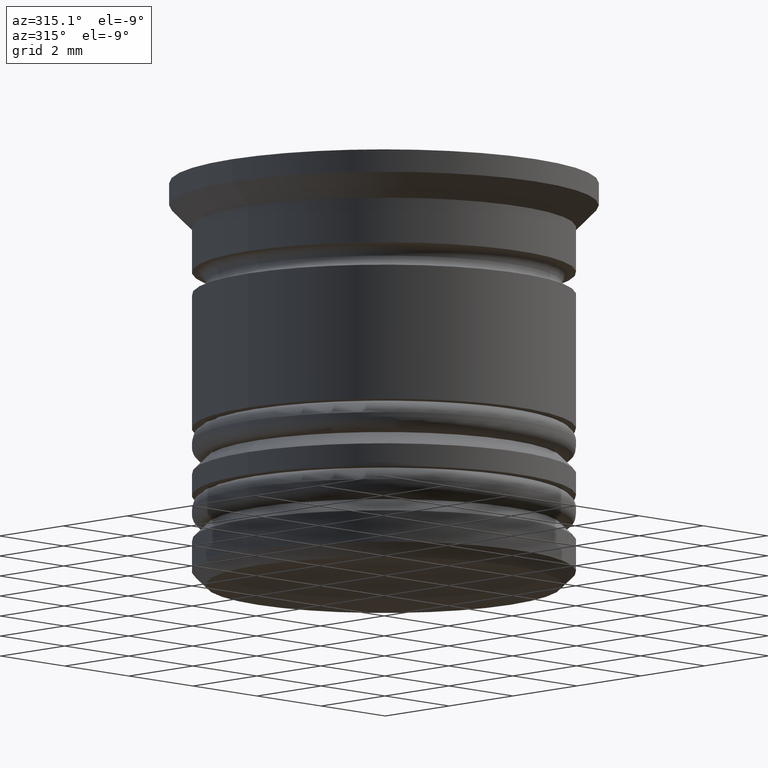
[diagram: clean part render]
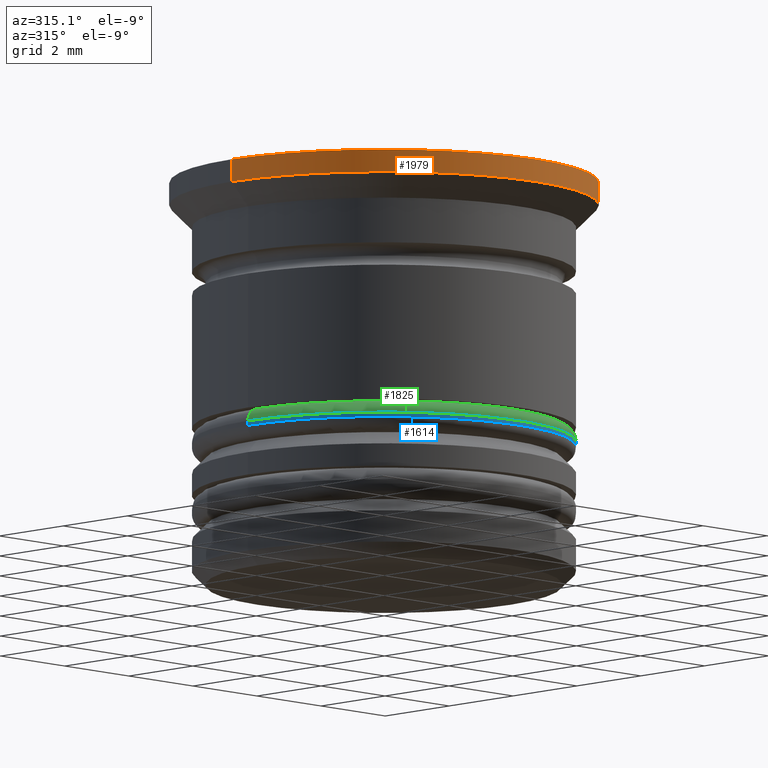
[diagram: same view with three faces highlighted in distinct colors, each labeled with its STEP entity id]
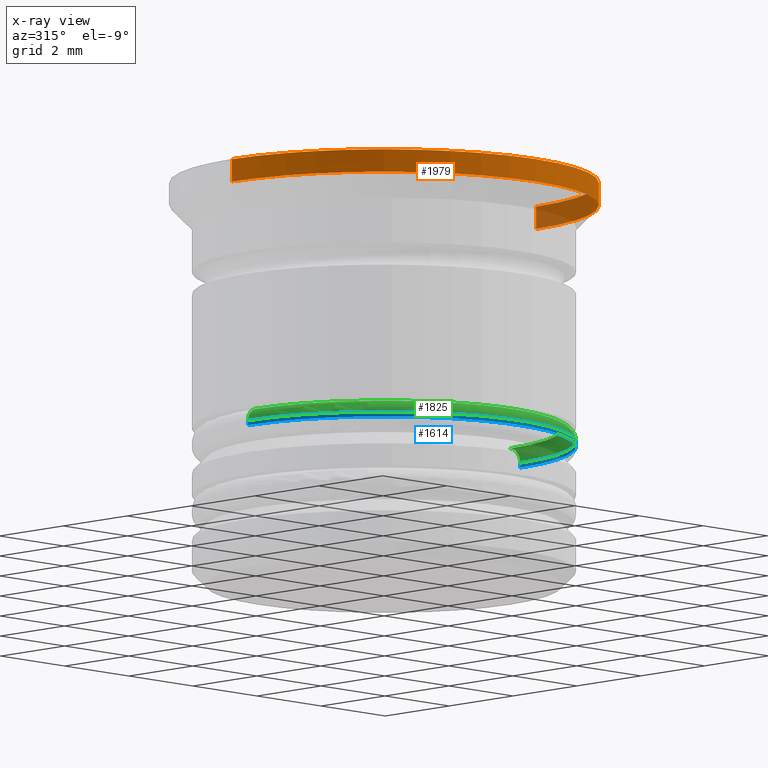
[diagram: x-ray of the same camera — body ghosted, the three highlighted faces saturated]
A machine part, auxiliary view with three faces highlighted in distinct colors.
The next image is the same camera in x-ray (body ghosted, the three faces saturated) — at least one of them is partly hidden behind the body in this view.
Their STEP definitions:

[orange] entity #1979 — the highlighted cylindrical surface (partial cylindrical patch) has radius 4.75 mm, axis along (-0, -0, 1).
#119 = ORIENTED_EDGE ( 'NONE', *, *, #1649, .T. ) ;
#137 = CARTESIAN_POINT ( 'NONE',  ( 0.000000000000000000, 0.000000000000000000, 0.000000000000000000 ) ) ;
#170 = VERTEX_POINT ( 'NONE', #566 ) ;
#172 = VERTEX_POINT ( 'NONE', #1450 ) ;
#214 = DIRECTION ( 'NONE',  ( -0.000000000000000000, -0.000000000000000000, 1.000000000000000000 ) ) ;
#255 = CIRCLE ( 'NONE', #417, 4.750000000000000000 ) ;
#279 = CARTESIAN_POINT ( 'NONE',  ( 0.000000000000000000, 0.000000000000000000, -0.4999999999999985012 ) ) ;
#417 = AXIS2_PLACEMENT_3D ( 'NONE', #279, #426, #1362 ) ;
#426 = DIRECTION ( 'NONE',  ( -0.000000000000000000, -0.000000000000000000, 1.000000000000000000 ) ) ;
#481 = DIRECTION ( 'NONE',  ( 1.000000000000000000, 0.000000000000000000, 0.000000000000000000 ) ) ;
#566 = CARTESIAN_POINT ( 'NONE',  ( 4.750000000000000000, 0.000000000000000000, 0.000000000000000000 ) ) ;
#585 = ORIENTED_EDGE ( 'NONE', *, *, #1754, .F. ) ;
#647 = CYLINDRICAL_SURFACE ( 'NONE', #2000, 4.750000000000000000 ) ;
#661 = FACE_OUTER_BOUND ( 'NONE', #715, .T. ) ;
#706 = ORIENTED_EDGE ( 'NONE', *, *, #955, .T. ) ;
#715 = EDGE_LOOP ( 'NONE', ( #1492, #119, #706, #585 ) ) ;
#785 = DIRECTION ( 'NONE',  ( 1.000000000000000000, 0.000000000000000000, 0.000000000000000000 ) ) ;
#797 = CARTESIAN_POINT ( 'NONE',  ( 4.750000000000000000, 0.000000000000000000, -0.4999999999999985012 ) ) ;
#837 = LINE ( 'NONE', #1021, #1930 ) ;
#937 = CIRCLE ( 'NONE', #1341, 4.750000000000000000 ) ;
#955 = EDGE_CURVE ( 'NONE', #2017, #170, #837, .T. ) ;
#1021 = CARTESIAN_POINT ( 'NONE',  ( 4.750000000000000000, 0.000000000000000000, 0.000000000000000000 ) ) ;
#1114 = CARTESIAN_POINT ( 'NONE',  ( -4.750000000000000000, 5.817072295949927426E-16, 0.000000000000000000 ) ) ;
#1140 = CARTESIAN_POINT ( 'NONE',  ( 0.000000000000000000, 0.000000000000000000, 0.000000000000000000 ) ) ;
#1230 = CARTESIAN_POINT ( 'NONE',  ( -4.750000000000000000, 5.817072295949927426E-16, 0.000000000000000000 ) ) ;
#1246 = DIRECTION ( 'NONE',  ( -0.000000000000000000, -0.000000000000000000, 1.000000000000000000 ) ) ;
#1341 = AXIS2_PLACEMENT_3D ( 'NONE', #137, #1246, #785 ) ;
#1362 = DIRECTION ( 'NONE',  ( -1.000000000000000000, 0.000000000000000000, 0.000000000000000000 ) ) ;
#1412 = DIRECTION ( 'NONE',  ( -0.000000000000000000, -0.000000000000000000, 1.000000000000000000 ) ) ;
#1437 = VECTOR ( 'NONE', #1412, 1000.000000000000000 ) ;
#1441 = DIRECTION ( 'NONE',  ( -0.000000000000000000, -0.000000000000000000, 1.000000000000000000 ) ) ;
#1450 = CARTESIAN_POINT ( 'NONE',  ( -4.750000000000000000, 5.817072295949927426E-16, -0.4999999999999985012 ) ) ;
#1492 = ORIENTED_EDGE ( 'NONE', *, *, #1891, .F. ) ;
#1542 = VERTEX_POINT ( 'NONE', #1230 ) ;
#1649 = EDGE_CURVE ( 'NONE', #172, #2017, #255, .T. ) ;
#1754 = EDGE_CURVE ( 'NONE', #1542, #170, #937, .T. ) ;
#1878 = LINE ( 'NONE', #1114, #1437 ) ;
#1891 = EDGE_CURVE ( 'NONE', #172, #1542, #1878, .T. ) ;
#1930 = VECTOR ( 'NONE', #214, 1000.000000000000000 ) ;
#1979 = ADVANCED_FACE ( 'NONE', ( #661 ), #647, .T. ) ;
#2000 = AXIS2_PLACEMENT_3D ( 'NONE', #1140, #1441, #481 ) ;
#2017 = VERTEX_POINT ( 'NONE', #797 ) ;

[blue] entity #1614 — the highlighted cylindrical surface (partial cylindrical patch) has radius 4.25 mm, axis along (-0, -0, 1).
#13 = CARTESIAN_POINT ( 'NONE',  ( 0.000000000000000000, 0.000000000000000000, -5.900000000000003908 ) ) ;
#58 = CIRCLE ( 'NONE', #731, 4.250000000000000000 ) ;
#84 = LINE ( 'NONE', #400, #478 ) ;
#148 = DIRECTION ( 'NONE',  ( -1.000000000000000000, 0.000000000000000000, 0.000000000000000000 ) ) ;
#150 = VERTEX_POINT ( 'NONE', #219 ) ;
#219 = CARTESIAN_POINT ( 'NONE',  ( -4.250000000000000000, 5.204748896376250699E-16, -5.900000000000003908 ) ) ;
#377 = AXIS2_PLACEMENT_3D ( 'NONE', #13, #1974, #1629 ) ;
#385 = CYLINDRICAL_SURFACE ( 'NONE', #691, 4.250000000000000000 ) ;
#400 = CARTESIAN_POINT ( 'NONE',  ( 4.250000000000000000, 0.000000000000000000, -18.22081528017131191 ) ) ;
#461 = VERTEX_POINT ( 'NONE', #1812 ) ;
#478 = VECTOR ( 'NONE', #1958, 1000.000000000000000 ) ;
#508 = CARTESIAN_POINT ( 'NONE',  ( 0.000000000000000000, 0.000000000000000000, -5.799999999999999822 ) ) ;
#620 = CARTESIAN_POINT ( 'NONE',  ( 4.250000000000000000, 0.000000000000000000, -5.799999999999999822 ) ) ;
#691 = AXIS2_PLACEMENT_3D ( 'NONE', #1640, #1810, #1490 ) ;
#724 = CIRCLE ( 'NONE', #377, 4.250000000000000000 ) ;
#731 = AXIS2_PLACEMENT_3D ( 'NONE', #508, #1007, #148 ) ;
#777 = EDGE_CURVE ( 'NONE', #1937, #1514, #84, .T. ) ;
#811 = CARTESIAN_POINT ( 'NONE',  ( 4.250000000000000000, 0.000000000000000000, -5.900000000000003908 ) ) ;
#887 = EDGE_CURVE ( 'NONE', #150, #1937, #724, .T. ) ;
#908 = EDGE_CURVE ( 'NONE', #150, #461, #1031, .T. ) ;
#928 = EDGE_LOOP ( 'NONE', ( #1585, #1802, #1482, #1366 ) ) ;
#1006 = DIRECTION ( 'NONE',  ( -0.000000000000000000, -0.000000000000000000, 1.000000000000000000 ) ) ;
#1007 = DIRECTION ( 'NONE',  ( 0.000000000000000000, 0.000000000000000000, -1.000000000000000000 ) ) ;
#1031 = LINE ( 'NONE', #1157, #1660 ) ;
#1157 = CARTESIAN_POINT ( 'NONE',  ( -4.250000000000000000, 5.204748896376250699E-16, -18.22081528017131191 ) ) ;
#1366 = ORIENTED_EDGE ( 'NONE', *, *, #2007, .T. ) ;
#1482 = ORIENTED_EDGE ( 'NONE', *, *, #777, .T. ) ;
#1490 = DIRECTION ( 'NONE',  ( 1.000000000000000000, 0.000000000000000000, 0.000000000000000000 ) ) ;
#1514 = VERTEX_POINT ( 'NONE', #620 ) ;
#1585 = ORIENTED_EDGE ( 'NONE', *, *, #908, .F. ) ;
#1614 = ADVANCED_FACE ( 'NONE', ( #1801 ), #385, .T. ) ;
#1629 = DIRECTION ( 'NONE',  ( 1.000000000000000000, 0.000000000000000000, 0.000000000000000000 ) ) ;
#1640 = CARTESIAN_POINT ( 'NONE',  ( 0.000000000000000000, 0.000000000000000000, -18.22081528017131191 ) ) ;
#1660 = VECTOR ( 'NONE', #1006, 1000.000000000000000 ) ;
#1801 = FACE_OUTER_BOUND ( 'NONE', #928, .T. ) ;
#1802 = ORIENTED_EDGE ( 'NONE', *, *, #887, .T. ) ;
#1810 = DIRECTION ( 'NONE',  ( -0.000000000000000000, -0.000000000000000000, 1.000000000000000000 ) ) ;
#1812 = CARTESIAN_POINT ( 'NONE',  ( -4.250000000000000000, 5.204748896376250699E-16, -5.799999999999999822 ) ) ;
#1937 = VERTEX_POINT ( 'NONE', #811 ) ;
#1958 = DIRECTION ( 'NONE',  ( -0.000000000000000000, -0.000000000000000000, 1.000000000000000000 ) ) ;
#1974 = DIRECTION ( 'NONE',  ( 0.000000000000000000, 0.000000000000000000, 1.000000000000000000 ) ) ;
#2007 = EDGE_CURVE ( 'NONE', #1514, #461, #58, .T. ) ;

[green] entity #1825 — the highlighted toroidal blend (fillet) surface has major radius 3.95 mm and minor (blend) radius 0.3 mm.
#58 = CIRCLE ( 'NONE', #731, 4.250000000000000000 ) ;
#131 = EDGE_CURVE ( 'NONE', #1892, #1514, #1541, .T. ) ;
#148 = DIRECTION ( 'NONE',  ( -1.000000000000000000, 0.000000000000000000, 0.000000000000000000 ) ) ;
#206 = DIRECTION ( 'NONE',  ( -1.224646799147353207E-16, 1.000000000000000000, 0.000000000000000000 ) ) ;
#236 = EDGE_CURVE ( 'NONE', #1487, #461, #1713, .T. ) ;
#273 = EDGE_LOOP ( 'NONE', ( #480, #474, #468, #1711 ) ) ;
#383 = AXIS2_PLACEMENT_3D ( 'NONE', #1674, #745, #1358 ) ;
#419 = TOROIDAL_SURFACE ( 'NONE', #383, 3.950000000000000178, 0.2999999999999999889 ) ;
#461 = VERTEX_POINT ( 'NONE', #1812 ) ;
#465 = CARTESIAN_POINT ( 'NONE',  ( 3.950000000000000178, 5.021051876504148371E-16, -5.500000000000000000 ) ) ;
#468 = ORIENTED_EDGE ( 'NONE', *, *, #236, .T. ) ;
#474 = ORIENTED_EDGE ( 'NONE', *, *, #1605, .F. ) ;
#480 = ORIENTED_EDGE ( 'NONE', *, *, #131, .F. ) ;
#486 = CIRCLE ( 'NONE', #969, 3.950000000000000178 ) ;
#508 = CARTESIAN_POINT ( 'NONE',  ( 0.000000000000000000, 0.000000000000000000, -5.799999999999999822 ) ) ;
#545 = DIRECTION ( 'NONE',  ( -1.000000000000000000, 0.000000000000000000, 0.000000000000000000 ) ) ;
#558 = DIRECTION ( 'NONE',  ( -0.000000000000000000, -0.000000000000000000, 1.000000000000000000 ) ) ;
#620 = CARTESIAN_POINT ( 'NONE',  ( 4.250000000000000000, 0.000000000000000000, -5.799999999999999822 ) ) ;
#704 = AXIS2_PLACEMENT_3D ( 'NONE', #1656, #1549, #816 ) ;
#731 = AXIS2_PLACEMENT_3D ( 'NONE', #508, #1007, #148 ) ;
#745 = DIRECTION ( 'NONE',  ( 0.000000000000000000, 0.000000000000000000, -1.000000000000000000 ) ) ;
#816 = DIRECTION ( 'NONE',  ( 0.000000000000000000, 0.000000000000000000, -1.000000000000000000 ) ) ;
#969 = AXIS2_PLACEMENT_3D ( 'NONE', #1327, #558, #545 ) ;
#1007 = DIRECTION ( 'NONE',  ( 0.000000000000000000, 0.000000000000000000, -1.000000000000000000 ) ) ;
#1066 = FACE_OUTER_BOUND ( 'NONE', #273, .T. ) ;
#1090 = CARTESIAN_POINT ( 'NONE',  ( -3.950000000000000178, 0.000000000000000000, -5.500000000000000000 ) ) ;
#1327 = CARTESIAN_POINT ( 'NONE',  ( 0.000000000000000000, 0.000000000000000000, -5.500000000000000000 ) ) ;
#1358 = DIRECTION ( 'NONE',  ( -1.000000000000000000, 0.000000000000000000, 0.000000000000000000 ) ) ;
#1463 = CARTESIAN_POINT ( 'NONE',  ( 3.950000000000000178, 4.837354856632045057E-16, -5.799999999999999822 ) ) ;
#1487 = VERTEX_POINT ( 'NONE', #1090 ) ;
#1514 = VERTEX_POINT ( 'NONE', #620 ) ;
#1541 = CIRCLE ( 'NONE', #1675, 0.2999999999999999334 ) ;
#1549 = DIRECTION ( 'NONE',  ( -0.000000000000000000, -1.000000000000000000, -0.000000000000000000 ) ) ;
#1605 = EDGE_CURVE ( 'NONE', #1487, #1892, #486, .T. ) ;
#1656 = CARTESIAN_POINT ( 'NONE',  ( -3.950000000000000178, 0.000000000000000000, -5.799999999999999822 ) ) ;
#1674 = CARTESIAN_POINT ( 'NONE',  ( 0.000000000000000000, 0.000000000000000000, -5.799999999999999822 ) ) ;
#1675 = AXIS2_PLACEMENT_3D ( 'NONE', #1463, #206, #1961 ) ;
#1711 = ORIENTED_EDGE ( 'NONE', *, *, #2007, .F. ) ;
#1713 = CIRCLE ( 'NONE', #704, 0.2999999999999999334 ) ;
#1812 = CARTESIAN_POINT ( 'NONE',  ( -4.250000000000000000, 5.204748896376250699E-16, -5.799999999999999822 ) ) ;
#1825 = ADVANCED_FACE ( 'NONE', ( #1066 ), #419, .T. ) ;
#1892 = VERTEX_POINT ( 'NONE', #465 ) ;
#1961 = DIRECTION ( 'NONE',  ( -1.000000000000000000, -1.224646799147353207E-16, 0.000000000000000000 ) ) ;
#2007 = EDGE_CURVE ( 'NONE', #1514, #461, #58, .T. ) ;